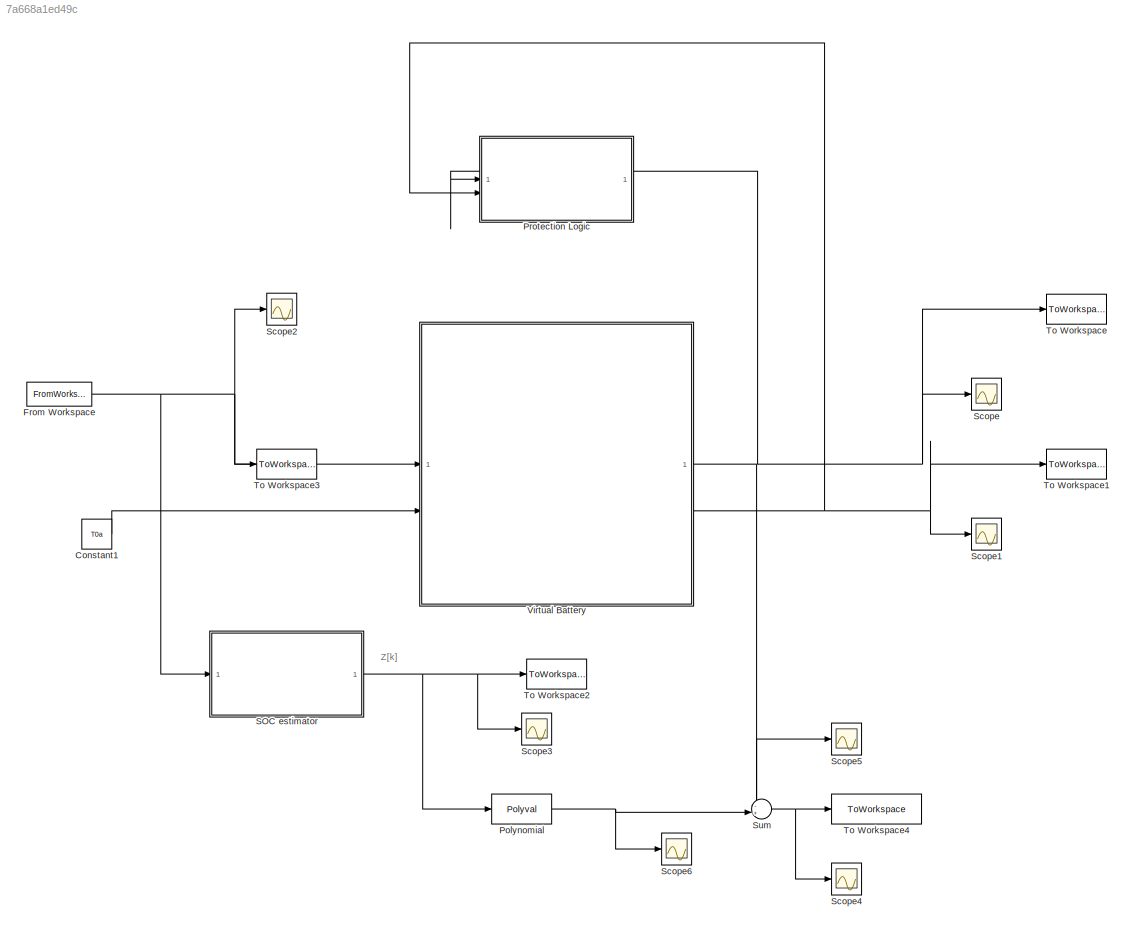
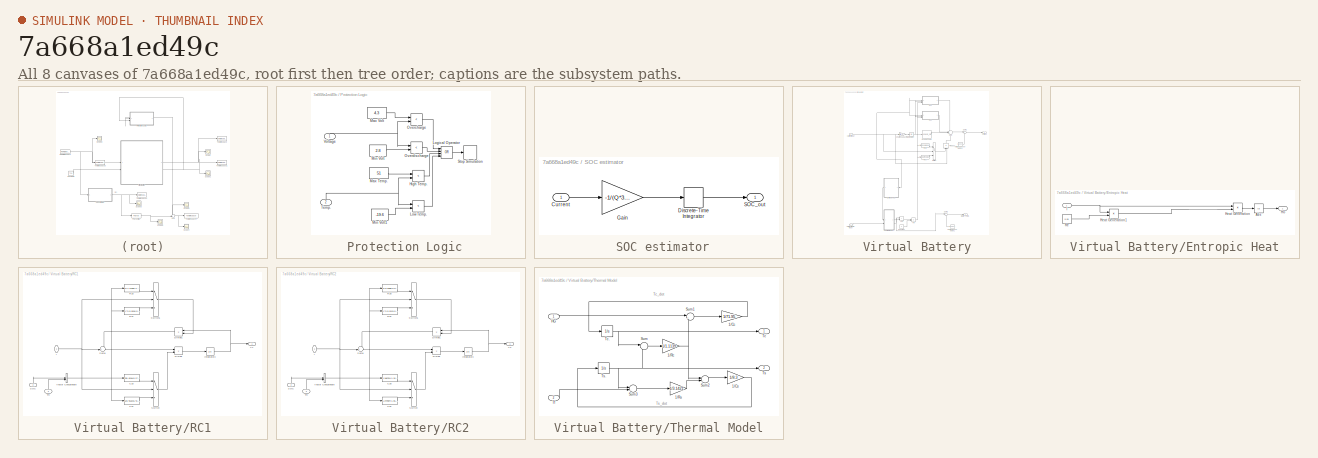
[diagram: thumbnail index - all 8 canvases of the model, root first then tree order]
MODEL slx_7a668a1ed49c
KIND model
CONFIG AbsTol = auto
CONFIG EnableMultiTasking = off
CONFIG FixedStep = Delta_t
CONFIG MaxStep = auto
CONFIG MinStep = auto
CONFIG RelTol = 1e-3
CONFIG SampleTimeConstraint = Unconstrained
CONFIG SolverName = FixedStepAuto
CONFIG StartTime = 0.0
CONFIG StopTime = Tspan
BLOCK [SubSystem]  Protection Logic
  Permissions = NoReadOrWrite
BLOCK [RelationalOperator]  Protection Logic/High Temp.
  InputSameDT = off
  Operator = <
  OutDataTypeStr = boolean
BLOCK [Logic]  Protection Logic/Logical Operator
  AllPortsSameDT = off
  Inputs = 4
  Operator = OR
  OutDataTypeStr = boolean
BLOCK [RelationalOperator]  Protection Logic/Low Temp.
  InputSameDT = off
  Operator = <
  OutDataTypeStr = boolean
  RndMeth = Convergent
BLOCK [Constant]  Protection Logic/Max Temp.
  Value = 51
BLOCK [Constant]  Protection Logic/Max Volt
  Value = 4.3
BLOCK [Constant]  Protection Logic/Min Volt
  Value = 2.8
BLOCK [Constant]  Protection Logic/Min Volt1
  Value = -19.6
BLOCK [RelationalOperator]  Protection Logic/Overcharge
  InputSameDT = off
  Operator = <
  OutDataTypeStr = boolean
BLOCK [RelationalOperator]  Protection Logic/Overdischarge
  InputSameDT = off
  Operator = <
  OutDataTypeStr = boolean
  RndMeth = Convergent
BLOCK [Stop]  Protection Logic/Stop Simulation
BLOCK [Inport]  Protection Logic/Temp. 
  NameLocation = right
  Port = 2
BLOCK [Inport]  Protection Logic/Voltage
  NameLocation = right
BLOCK [SubSystem]  SOC estimator
BLOCK [Inport]  SOC estimator/Current
BLOCK [DiscreteIntegrator]  SOC estimator/Discrete-Time Integrator
  ICPrevOutput = DiscIntNeverNeededParam
  ICPrevScaledInput = DiscIntNeverNeededParam
  InitialCondition = SOC_0
  InitialConditionSetting = Auto
  SampleTime = Delta_t
BLOCK [Gain]  SOC estimator/Gain
  Gain = -1/(Q*3600)
BLOCK [Outport]  SOC estimator/SOC_out
  VectorParamsAs1DForOutWhenUnconnected = off
BLOCK [Constant] Constant1
  Value = T0a
BLOCK [FromWorkspace] From Workspace
  VariableName = Current_Input
BLOCK [Polyval] Polynomial
  Coefs = alpha
BLOCK [Scope] Scope
  Floating = off
  NumInputPorts = 1
  ScopeSpecificationString = Simulink.scopes.TimeScopeBlockCfg('CurrentConfiguration', extmgr.ConfigurationSet(extmgr.Configuration('Core','General UI',true),extmgr.Configuration('Core','Source UI',true),extmgr.Configuration('Sources','WiredSimulink',true,'DataLoggingVariableName','ScopeData1'),extmgr.Configuration('Visuals','Time Domain',true,'SerializedDisplays',{struct('MinYLimReal','2.94366','MaxYLimReal','3.44836','YLabe...<+1447ch>
BLOCK [Scope] Scope1
  Floating = off
  NumInputPorts = 1
  ScopeSpecificationString = Simulink.scopes.TimeScopeBlockCfg('CurrentConfiguration', extmgr.ConfigurationSet(extmgr.Configuration('Core','General UI',true),extmgr.Configuration('Core','Source UI',true),extmgr.Configuration('Sources','WiredSimulink',true,'DataLoggingVariableName','ScopeData2'),extmgr.Configuration('Visuals','Time Domain',true,'SerializedDisplays',{struct('MinYLimReal','24.43407','MaxYLimReal','28.86064','YLa...<+1436ch>
BLOCK [Scope] Scope2
  Floating = off
  NumInputPorts = 1
  ScopeSpecificationString = Simulink.scopes.TimeScopeBlockCfg('CurrentConfiguration', extmgr.ConfigurationSet(extmgr.Configuration('Core','General UI',true),extmgr.Configuration('Core','Source UI',true),extmgr.Configuration('Sources','WiredSimulink',true,'DataLoggingVariableName','ScopeData3'),extmgr.Configuration('Visuals','Time Domain',true,'SerializedDisplays',{struct('MinYLimReal','-3.5','MaxYLimReal','-1.5','YLabelReal'...<+1381ch>
BLOCK [Scope] Scope3
  Floating = off
  NumInputPorts = 1
  ScopeSpecificationString = Simulink.scopes.TimeScopeBlockCfg('CurrentConfiguration', extmgr.ConfigurationSet(extmgr.Configuration('Core','General UI',true),extmgr.Configuration('Core','Source UI',true),extmgr.Configuration('Sources','WiredSimulink',true,'DataLoggingVariableName','ScopeData4'),extmgr.Configuration('Visuals','Time Domain',true,'SerializedDisplays',{struct('MinYLimReal','0.65625','MaxYLimReal','0.76042','YLabe...<+1400ch>
BLOCK [Scope] Scope4
  Floating = off
  NumInputPorts = 1
  ScopeSpecificationString = Simulink.scopes.TimeScopeBlockCfg('CurrentConfiguration', extmgr.ConfigurationSet(extmgr.Configuration('Core','General UI',true),extmgr.Configuration('Core','Source UI',true),extmgr.Configuration('Sources','WiredSimulink',true,'DataLoggingVariableName','ScopeData5'),extmgr.Configuration('Visuals','Time Domain',true,'SerializedDisplays',{struct('MinYLimReal','-159.33521','MaxYLimReal','-60.17873','...<+1431ch>
BLOCK [Scope] Scope5
  Floating = off
  NumInputPorts = 1
  ScopeSpecificationString = Simulink.scopes.TimeScopeBlockCfg('CurrentConfiguration', extmgr.ConfigurationSet(extmgr.Configuration('Core','General UI',true),extmgr.Configuration('Core','Source UI',true),extmgr.Configuration('Sources','WiredSimulink',true,'DataLoggingVariableName','ScopeData6'),extmgr.Configuration('Visuals','Time Domain',true,'SerializedDisplays',{struct('MinYLimReal','3.72903','MaxYLimReal','3.84308','YLabe...<+1404ch>
BLOCK [Scope] Scope6
  Floating = off
  NumInputPorts = 1
  ScopeSpecificationString = Simulink.scopes.TimeScopeBlockCfg('CurrentConfiguration', extmgr.ConfigurationSet(extmgr.Configuration('Core','General UI',true),extmgr.Configuration('Core','Source UI',true),extmgr.Configuration('Sources','WiredSimulink',true),extmgr.Configuration('Visuals','Time Domain',true,'SerializedDisplays',{struct('MinYLimReal','3.83421','MaxYLimReal','3.93249','YLabelReal','','MinYLimMag','3.83421','MaxYL...<+1358ch>
BLOCK [Sum] Sum
  Inputs = -+|
BLOCK [ToWorkspace] To Workspace
  FixptAsFi = on
  MaxDataPoints = inf
  SampleTime = -1
  Save2DSignal = 2-D array (concatenate along first dimension)
  VariableName = V_out
BLOCK [ToWorkspace] To Workspace1
  FixptAsFi = on
  MaxDataPoints = inf
  SampleTime = -1
  Save2DSignal = 2-D array (concatenate along first dimension)
  VariableName = Temp
BLOCK [ToWorkspace] To Workspace2
  FixptAsFi = on
  MaxDataPoints = inf
  SampleTime = -1
  Save2DSignal = 2-D array (concatenate along first dimension)
  VariableName = SOC_out
BLOCK [ToWorkspace] To Workspace3
  FixptAsFi = on
  MaxDataPoints = inf
  SampleTime = -1
  Save2DSignal = 2-D array (concatenate along first dimension)
  VariableName = I_out
BLOCK [ToWorkspace] To Workspace4
  FixptAsFi = on
  MaxDataPoints = inf
  SampleTime = -1
  VariableName = Y_k
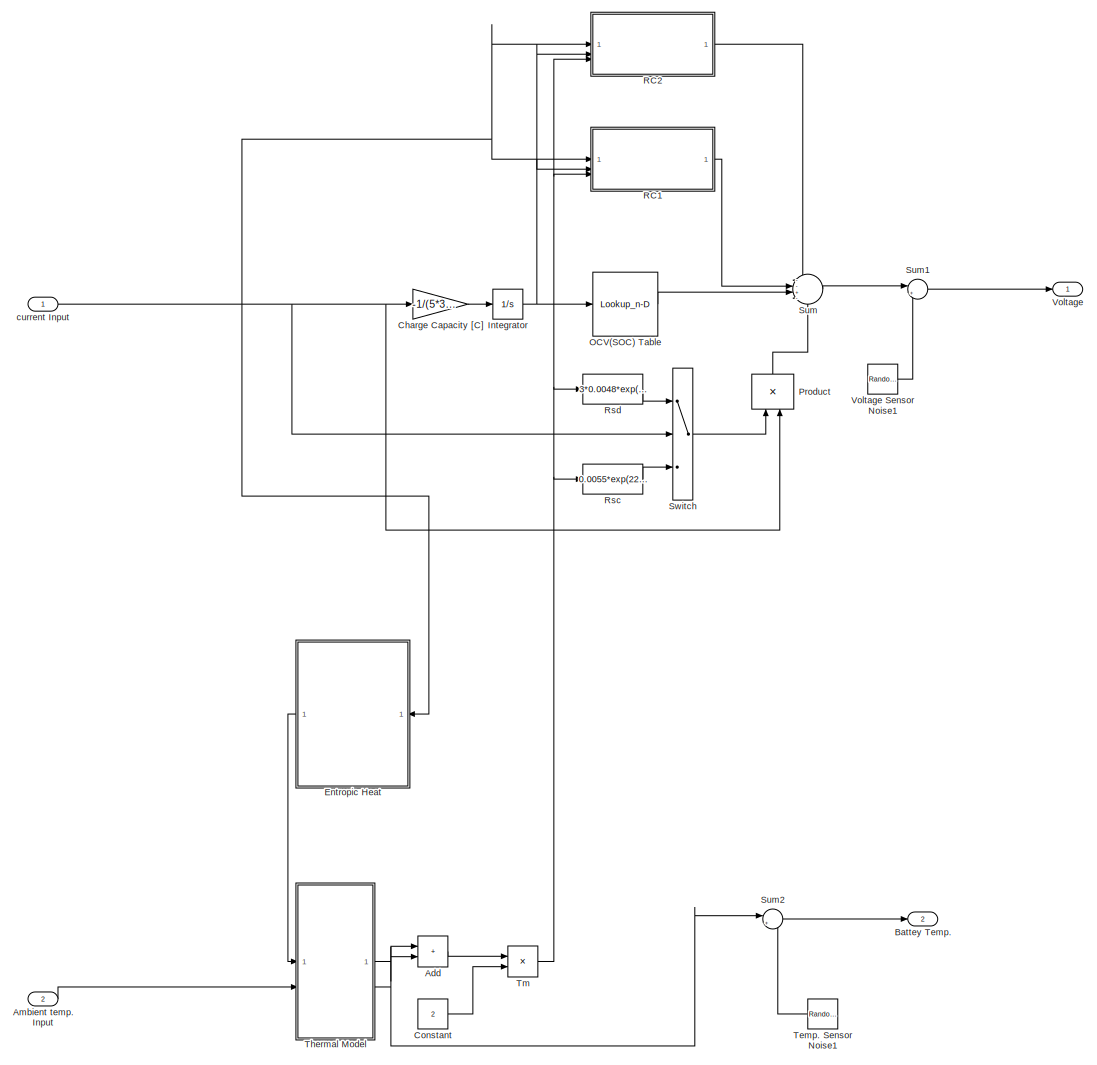
[diagram: Virtual Battery - part 1/1, most of the canvas]
BLOCK [SubSystem] Virtual Battery
  TreatAsAtomicUnit = on
BLOCK [Sum] Virtual Battery/Add
  IconShape = rectangular
BLOCK [Inport] Virtual Battery/Ambient temp. Input
  Port = 2
BLOCK [Outport] Virtual Battery/Battey Temp.
  Port = 2
  VectorParamsAs1DForOutWhenUnconnected = off
BLOCK [Gain] Virtual Battery/Charge Capacity [C]
  Gain = -1/(5*3600)
BLOCK [Constant] Virtual Battery/Constant
  Value = 2
BLOCK [SubSystem] Virtual Battery/Entropic Heat
BLOCK [Abs] Virtual Battery/Entropic Heat/Abs
  SaturateOnIntegerOverflow = off
BLOCK [Outport] Virtual Battery/Entropic Heat/HG
  VectorParamsAs1DForOutWhenUnconnected = off
BLOCK [Product] Virtual Battery/Entropic Heat/Heat Generation
  RndMeth = Zero
BLOCK [Product] Virtual Battery/Entropic Heat/Heat Generation1
  RndMeth = Zero
BLOCK [Inport] Virtual Battery/Entropic Heat/I
BLOCK [Constant] Virtual Battery/Entropic Heat/Re
  Value = 0.05
BLOCK [Integrator] Virtual Battery/Integrator
  InitialCondition = SOC_0
BLOCK [Lookup_n-D] Virtual Battery/OCV(SOC) Table
  BreakpointsForDimension1 = [0.00249924727509931	0.00398488049116370	0.00565422471956136	0.00732360725351651	0.00899292412080168	0.0106621807936394	0.0123315359664820	0.0140008419004337	0.0156702080232771	0.0173396343294565	0.0190090770578591	0.0206785197807060	0.0223477217479859	0.0240169674874899	0.0256863883270025	0.0273556942553984	0.0290250384837961	0.0306944647955312	0.0323638418572639	0.0340331532578823	0.035702524847...<+10429ch>
  InputPortMap = u0
  InternalRulePriority = Speed
  NumberOfTableDimensions = 1
  RndMeth = Simplest
  Table = [3.06724050000000	3.11142970000000	3.14352770000000	3.17117550000000	3.19555430000000	3.21760940000000	3.23769550000000	3.25620600000000	3.27341680000000	3.28948570000000	3.30456970000000	3.31882690000000	3.33209940000000	3.34482050000000	3.35675380000000	3.36825420000000	3.37916350000000	3.38960030000000	3.39948580000000	3.40897730000000	3.41815400000000	3.42670040000000	3.43497090000000	3.443005...<+9767ch>
BLOCK [Product] Virtual Battery/Product
  NameLocation = right
  RndMeth = Zero
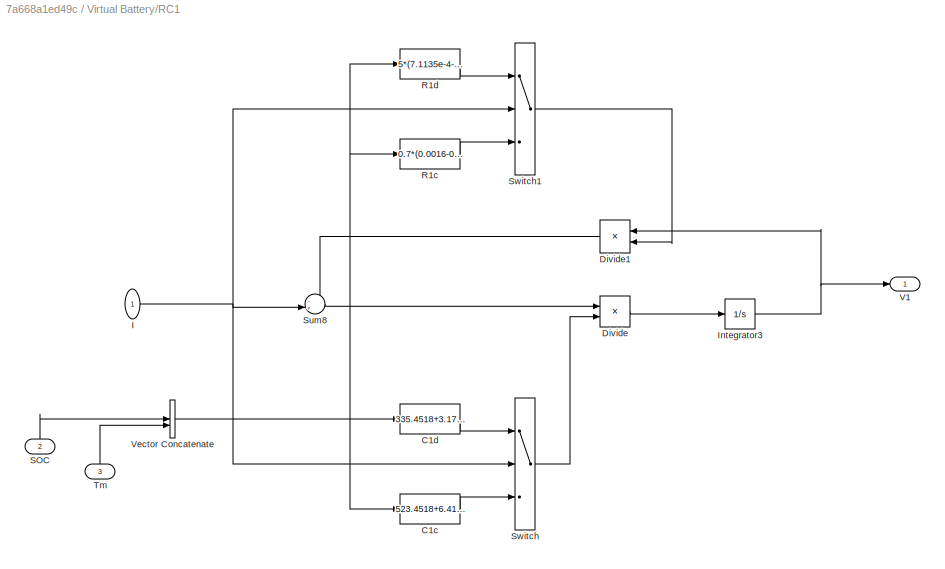
BLOCK [SubSystem] Virtual Battery/RC1
BLOCK [Fcn] Virtual Battery/RC1/C1c
  Expr = 523.4518+6.4171e3*u(1)-7.5555e3*u(1)^2+(50.7107-131.2298*u(1)+162.4688*u(1)^2)*u(2)
BLOCK [Fcn] Virtual Battery/RC1/C1d
  Expr = 335.4518+3.1712e3*u(1)-1.3214e3*u(1)^2+(53.2138-65.4786*u(1)+44.3761*u(1)^2)*u(2)
BLOCK [Product] Virtual Battery/RC1/Divide
  Inputs = */
BLOCK [Product] Virtual Battery/RC1/Divide1
  Inputs = */
BLOCK [Inport] Virtual Battery/RC1/I
BLOCK [Integrator] Virtual Battery/RC1/Integrator3
BLOCK [Fcn] Virtual Battery/RC1/R1c
  Expr = 0.7*(0.0016-0.0032*u(1)+0.0045*u(1)^2)*exp(159.2819/(u(2)-(-41.4548)))
BLOCK [Fcn] Virtual Battery/RC1/R1d
  Expr = 5*(7.1135e-4-4.3865e-4*u(1)+2.3788e-4*u(1)^2)*exp(347.4707/(u(2)-(-79.5816)))
BLOCK [Inport] Virtual Battery/RC1/SOC
  NameLocation = right
  Port = 2
BLOCK [Sum] Virtual Battery/RC1/Sum8
  Inputs = -+|
BLOCK [Switch] Virtual Battery/RC1/Switch
  InputSameDT = off
  SaturateOnIntegerOverflow = off
BLOCK [Switch] Virtual Battery/RC1/Switch1
  InputSameDT = off
  SaturateOnIntegerOverflow = off
BLOCK [Inport] Virtual Battery/RC1/Tm
  NameLocation = right
  Port = 3
BLOCK [Outport] Virtual Battery/RC1/V1
  VectorParamsAs1DForOutWhenUnconnected = off
BLOCK [Concatenate] Virtual Battery/RC1/Vector Concatenate
BLOCK [SubSystem] Virtual Battery/RC2
BLOCK [Fcn] Virtual Battery/RC2/C2c
  Expr = 6.2449e4-1.055e5*u(1)+4.4432e4*u(1)^2+(198.9753+7.5621e3*u(1)-6.9365e3*u(1)^2)*u(2)
BLOCK [Fcn] Virtual Battery/RC2/C2d
  Expr = 3.1887e4-1.1593e5*u(1)+1.0493e5*u(1)^2+(60.3114+1.0175e4*u(1)-9.5924e3*u(1)^2)*u(2)
BLOCK [Product] Virtual Battery/RC2/Divide
  Inputs = */
BLOCK [Product] Virtual Battery/RC2/Divide1
  Inputs = */
BLOCK [Inport] Virtual Battery/RC2/I
BLOCK [Integrator] Virtual Battery/RC2/Integrator3
BLOCK [Fcn] Virtual Battery/RC2/R2c
  Expr = 0.7*(0.0113-0.027*u(1)+0.0339*u(1)^2)*exp(17.0224/u(2))
BLOCK [Fcn] Virtual Battery/RC2/R2d
  Expr = 4*(0.0288-0.073*u(1)+0.0605*u(1)^2)*exp(16.6712/u(2))
BLOCK [Inport] Virtual Battery/RC2/SOC
  NameLocation = right
  Port = 2
BLOCK [Sum] Virtual Battery/RC2/Sum8
  Inputs = -+|
BLOCK [Switch] Virtual Battery/RC2/Switch
  InputSameDT = off
  SaturateOnIntegerOverflow = off
BLOCK [Switch] Virtual Battery/RC2/Switch1
  InputSameDT = off
  SaturateOnIntegerOverflow = off
BLOCK [Inport] Virtual Battery/RC2/Tm
  NameLocation = right
  Port = 3
BLOCK [Outport] Virtual Battery/RC2/V2
  VectorParamsAs1DForOutWhenUnconnected = off
BLOCK [Concatenate] Virtual Battery/RC2/Vector Concatenate
BLOCK [Fcn] Virtual Battery/Rsc
  Expr = 0.0055*exp(22.2477/(u(1)-(-11.5943)))
BLOCK [Fcn] Virtual Battery/Rsd
  Expr = 3*0.0048*exp(31.0494/(u(1)-(-15.3253)))
BLOCK [Sum] Virtual Battery/Sum
  Inputs = --+-
BLOCK [Sum] Virtual Battery/Sum1
  Inputs = |++
BLOCK [Sum] Virtual Battery/Sum2
  Inputs = |++
BLOCK [Switch] Virtual Battery/Switch
  InputSameDT = off
  SaturateOnIntegerOverflow = off
BLOCK [RandomNumber] Virtual Battery/Temp. Sensor Noise1
  SampleTime = 1
  Variance = 0.01
BLOCK [SubSystem] Virtual Battery/Thermal Model
BLOCK [Gain] Virtual Battery/Thermal Model/1//Cc
  Gain = 1/71.95
BLOCK [Gain] Virtual Battery/Thermal Model/1//Cs
  Gain = 1/8.3
BLOCK [Gain] Virtual Battery/Thermal Model/1//Rc
  Gain = 1/1.1139
BLOCK [Gain] Virtual Battery/Thermal Model/1//Ru
  Gain = 1/3.1421
BLOCK [Inport] Virtual Battery/Thermal Model/HG
BLOCK [Sum] Virtual Battery/Thermal Model/Sum
  Inputs = |-+
BLOCK [Sum] Virtual Battery/Thermal Model/Sum1
  Inputs = |++
BLOCK [Sum] Virtual Battery/Thermal Model/Sum2
  Inputs = |-+
BLOCK [Sum] Virtual Battery/Thermal Model/Sum3
  Inputs = |-+
BLOCK [Outport] Virtual Battery/Thermal Model/Tc
  VectorParamsAs1DForOutWhenUnconnected = off
BLOCK [Integrator] Virtual Battery/Thermal Model/Tc.
  InitialCondition = T0a
BLOCK [Inport] Virtual Battery/Thermal Model/Tf
  Port = 2
BLOCK [Outport] Virtual Battery/Thermal Model/Ts
  Port = 2
  VectorParamsAs1DForOutWhenUnconnected = off
BLOCK [Integrator] Virtual Battery/Thermal Model/Ts.
  InitialCondition = T0a
BLOCK [Product] Virtual Battery/Tm
  Inputs = */
BLOCK [Outport] Virtual Battery/Voltage
  VectorParamsAs1DForOutWhenUnconnected = off
BLOCK [RandomNumber] Virtual Battery/Voltage Sensor Noise1
  SampleTime = 10
  Variance = 0.000001
BLOCK [Inport] Virtual Battery/current Input
ANNOTATION (root): Z[k]
ANNOTATION Virtual Battery/Thermal Model: Tc_dot
ANNOTATION Virtual Battery/Thermal Model: Ts_dot
LINE  Protection Logic/High Temp.:1 ->  Protection Logic/Logical Operator:3
LINE  Protection Logic/Logical Operator:1 ->  Protection Logic/Stop Simulation:1
LINE  Protection Logic/Low Temp.:1 ->  Protection Logic/Logical Operator:4
LINE  Protection Logic/Max Temp.:1 ->  Protection Logic/High Temp.:1
LINE  Protection Logic/Max Volt:1 ->  Protection Logic/Overcharge:1
LINE  Protection Logic/Min Volt1:1 ->  Protection Logic/Low Temp.:2
LINE  Protection Logic/Min Volt:1 ->  Protection Logic/Overdischarge:2
LINE  Protection Logic/Overcharge:1 ->  Protection Logic/Logical Operator:1
LINE  Protection Logic/Overdischarge:1 ->  Protection Logic/Logical Operator:2
NET  Protection Logic/Temp. :1 ->  Protection Logic/High Temp.:2,  Protection Logic/Low Temp.:1
NET  Protection Logic/Voltage:1 ->  Protection Logic/Overcharge:2,  Protection Logic/Overdischarge:1
LINE  SOC estimator/Current:1 ->  SOC estimator/Gain:1
LINE  SOC estimator/Discrete-Time Integrator:1 ->  SOC estimator/SOC_out:1
LINE  SOC estimator/Gain:1 ->  SOC estimator/Discrete-Time Integrator:1
NET  SOC estimator:1 -> Polynomial:1, Scope3:1, To Workspace2:1
LINE Constant1:1 -> Virtual Battery:2
NET From Workspace:1 ->  SOC estimator:1, Scope2:1, To Workspace3:1, Virtual Battery:1
NET Polynomial:1 -> Scope6:1, Sum:2
NET Sum:1 -> Scope4:1, To Workspace4:1
LINE Virtual Battery/Add:1 -> Virtual Battery/Tm:1
LINE Virtual Battery/Ambient temp. Input:1 -> Virtual Battery/Thermal Model:2
LINE Virtual Battery/Charge Capacity [C]:1 -> Virtual Battery/Integrator:1
LINE Virtual Battery/Constant:1 -> Virtual Battery/Tm:2
LINE Virtual Battery/Entropic Heat/Abs:1 -> Virtual Battery/Entropic Heat/HG:1
LINE Virtual Battery/Entropic Heat/Heat Generation1:1 -> Virtual Battery/Entropic Heat/Heat Generation:2
LINE Virtual Battery/Entropic Heat/Heat Generation:1 -> Virtual Battery/Entropic Heat/Abs:1
NET Virtual Battery/Entropic Heat/I:1 -> Virtual Battery/Entropic Heat/Heat Generation1:1, Virtual Battery/Entropic Heat/Heat Generation:1
LINE Virtual Battery/Entropic Heat/Re:1 -> Virtual Battery/Entropic Heat/Heat Generation1:2
LINE Virtual Battery/Entropic Heat:1 -> Virtual Battery/Thermal Model:1
NET Virtual Battery/Integrator:1 -> Virtual Battery/OCV(SOC) Table:1, Virtual Battery/RC1:2, Virtual Battery/RC2:2
LINE Virtual Battery/OCV(SOC) Table:1 -> Virtual Battery/Sum:3
LINE Virtual Battery/Product:1 -> Virtual Battery/Sum:4
LINE Virtual Battery/RC1/C1c:1 -> Virtual Battery/RC1/Switch:3
LINE Virtual Battery/RC1/C1d:1 -> Virtual Battery/RC1/Switch:1
LINE Virtual Battery/RC1/Divide1:1 -> Virtual Battery/RC1/Sum8:1
LINE Virtual Battery/RC1/Divide:1 -> Virtual Battery/RC1/Integrator3:1
NET Virtual Battery/RC1/I:1 -> Virtual Battery/RC1/Sum8:2, Virtual Battery/RC1/Switch1:2, Virtual Battery/RC1/Switch:2
NET Virtual Battery/RC1/Integrator3:1 -> Virtual Battery/RC1/Divide1:1, Virtual Battery/RC1/V1:1
LINE Virtual Battery/RC1/R1c:1 -> Virtual Battery/RC1/Switch1:3
LINE Virtual Battery/RC1/R1d:1 -> Virtual Battery/RC1/Switch1:1
LINE Virtual Battery/RC1/SOC:1 -> Virtual Battery/RC1/Vector Concatenate:1
LINE Virtual Battery/RC1/Sum8:1 -> Virtual Battery/RC1/Divide:1
LINE Virtual Battery/RC1/Switch1:1 -> Virtual Battery/RC1/Divide1:2
LINE Virtual Battery/RC1/Switch:1 -> Virtual Battery/RC1/Divide:2
LINE Virtual Battery/RC1/Tm:1 -> Virtual Battery/RC1/Vector Concatenate:2
NET Virtual Battery/RC1/Vector Concatenate:1 -> Virtual Battery/RC1/C1c:1, Virtual Battery/RC1/C1d:1, Virtual Battery/RC1/R1c:1, Virtual Battery/RC1/R1d:1
LINE Virtual Battery/RC1:1 -> Virtual Battery/Sum:2
LINE Virtual Battery/RC2/C2c:1 -> Virtual Battery/RC2/Switch:3
LINE Virtual Battery/RC2/C2d:1 -> Virtual Battery/RC2/Switch:1
LINE Virtual Battery/RC2/Divide1:1 -> Virtual Battery/RC2/Sum8:1
LINE Virtual Battery/RC2/Divide:1 -> Virtual Battery/RC2/Integrator3:1
NET Virtual Battery/RC2/I:1 -> Virtual Battery/RC2/Sum8:2, Virtual Battery/RC2/Switch1:2, Virtual Battery/RC2/Switch:2
NET Virtual Battery/RC2/Integrator3:1 -> Virtual Battery/RC2/Divide1:1, Virtual Battery/RC2/V2:1
LINE Virtual Battery/RC2/R2c:1 -> Virtual Battery/RC2/Switch1:3
LINE Virtual Battery/RC2/R2d:1 -> Virtual Battery/RC2/Switch1:1
LINE Virtual Battery/RC2/SOC:1 -> Virtual Battery/RC2/Vector Concatenate:1
LINE Virtual Battery/RC2/Sum8:1 -> Virtual Battery/RC2/Divide:1
LINE Virtual Battery/RC2/Switch1:1 -> Virtual Battery/RC2/Divide1:2
LINE Virtual Battery/RC2/Switch:1 -> Virtual Battery/RC2/Divide:2
LINE Virtual Battery/RC2/Tm:1 -> Virtual Battery/RC2/Vector Concatenate:2
NET Virtual Battery/RC2/Vector Concatenate:1 -> Virtual Battery/RC2/C2c:1, Virtual Battery/RC2/C2d:1, Virtual Battery/RC2/R2c:1, Virtual Battery/RC2/R2d:1
LINE Virtual Battery/RC2:1 -> Virtual Battery/Sum:1
LINE Virtual Battery/Rsc:1 -> Virtual Battery/Switch:3
LINE Virtual Battery/Rsd:1 -> Virtual Battery/Switch:1
LINE Virtual Battery/Sum1:1 -> Virtual Battery/Voltage:1
LINE Virtual Battery/Sum2:1 -> Virtual Battery/Battey Temp.:1
LINE Virtual Battery/Sum:1 -> Virtual Battery/Sum1:1
LINE Virtual Battery/Switch:1 -> Virtual Battery/Product:1
LINE Virtual Battery/Temp. Sensor Noise1:1 -> Virtual Battery/Sum2:2
LINE Virtual Battery/Thermal Model/1//Cc:1 -> Virtual Battery/Thermal Model/Tc.:1
LINE Virtual Battery/Thermal Model/1//Cs:1 -> Virtual Battery/Thermal Model/Ts.:1
NET Virtual Battery/Thermal Model/1//Rc:1 -> Virtual Battery/Thermal Model/Sum1:2, Virtual Battery/Thermal Model/Sum2:1
LINE Virtual Battery/Thermal Model/1//Ru:1 -> Virtual Battery/Thermal Model/Sum2:2
LINE Virtual Battery/Thermal Model/HG:1 -> Virtual Battery/Thermal Model/Sum1:1
LINE Virtual Battery/Thermal Model/Sum1:1 -> Virtual Battery/Thermal Model/1//Cc:1
LINE Virtual Battery/Thermal Model/Sum2:1 -> Virtual Battery/Thermal Model/1//Cs:1
LINE Virtual Battery/Thermal Model/Sum3:1 -> Virtual Battery/Thermal Model/1//Ru:1
LINE Virtual Battery/Thermal Model/Sum:1 -> Virtual Battery/Thermal Model/1//Rc:1
NET Virtual Battery/Thermal Model/Tc.:1 -> Virtual Battery/Thermal Model/Sum:1, Virtual Battery/Thermal Model/Tc:1
LINE Virtual Battery/Thermal Model/Tf:1 -> Virtual Battery/Thermal Model/Sum3:2
NET Virtual Battery/Thermal Model/Ts.:1 -> Virtual Battery/Thermal Model/Sum3:1, Virtual Battery/Thermal Model/Sum:2, Virtual Battery/Thermal Model/Ts:1
LINE Virtual Battery/Thermal Model:1 -> Virtual Battery/Add:1
NET Virtual Battery/Thermal Model:2 -> Virtual Battery/Add:2, Virtual Battery/Sum2:1
NET Virtual Battery/Tm:1 -> Virtual Battery/RC1:3, Virtual Battery/RC2:3, Virtual Battery/Rsc:1, Virtual Battery/Rsd:1
LINE Virtual Battery/Voltage Sensor Noise1:1 -> Virtual Battery/Sum1:2
NET Virtual Battery/current Input:1 -> Virtual Battery/Charge Capacity [C]:1, Virtual Battery/Entropic Heat:1, Virtual Battery/Product:2, Virtual Battery/RC1:1, Virtual Battery/RC2:1, Virtual Battery/Switch:2
NET Virtual Battery:1 ->  Protection Logic:1, Scope5:1, Scope:1, Sum:1, To Workspace:1
NET Virtual Battery:2 ->  Protection Logic:2, Scope1:1, To Workspace1:1
note: NET lines group one-source signal fan-out (src -> all destinations, sorted); 1:1 wires keep LINE
